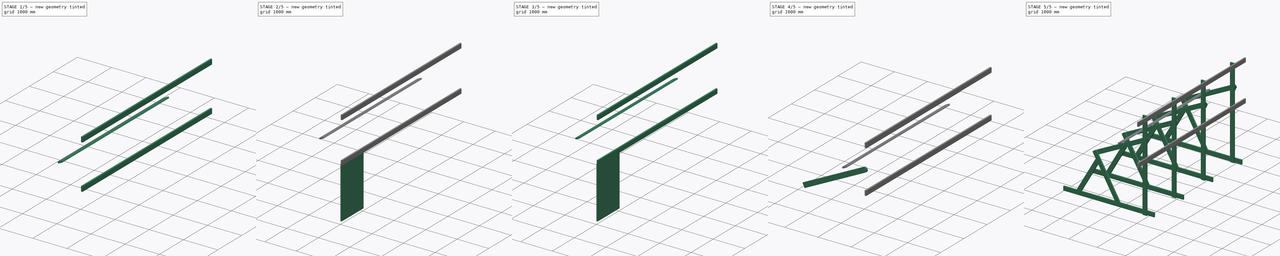
[diagram: build sequence overview — one tinted view per stage of 5, left to right]
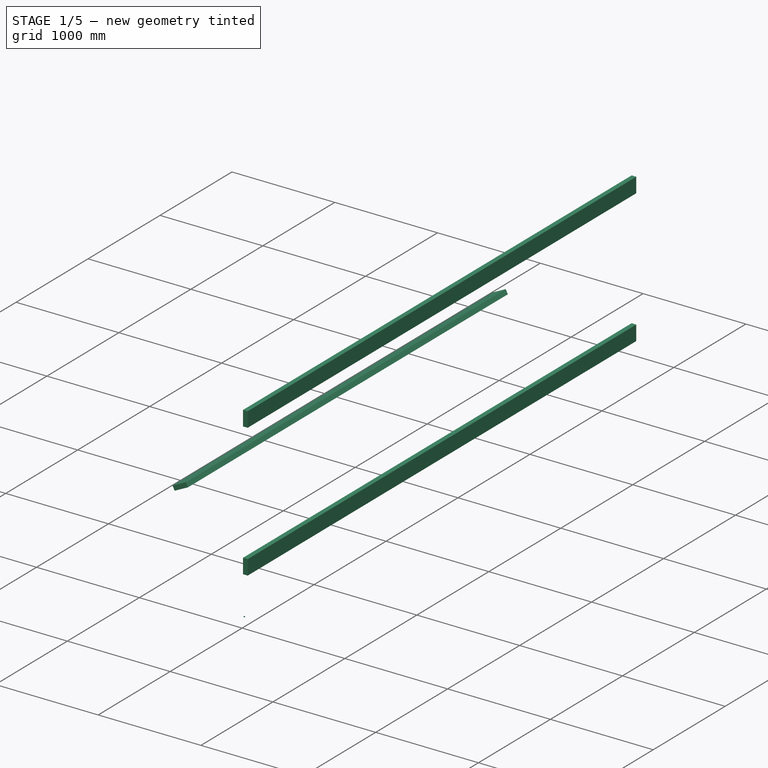
[diagram: stage 1 of 5 — iso view after this stage's code; geometry added in this stage tinted green]
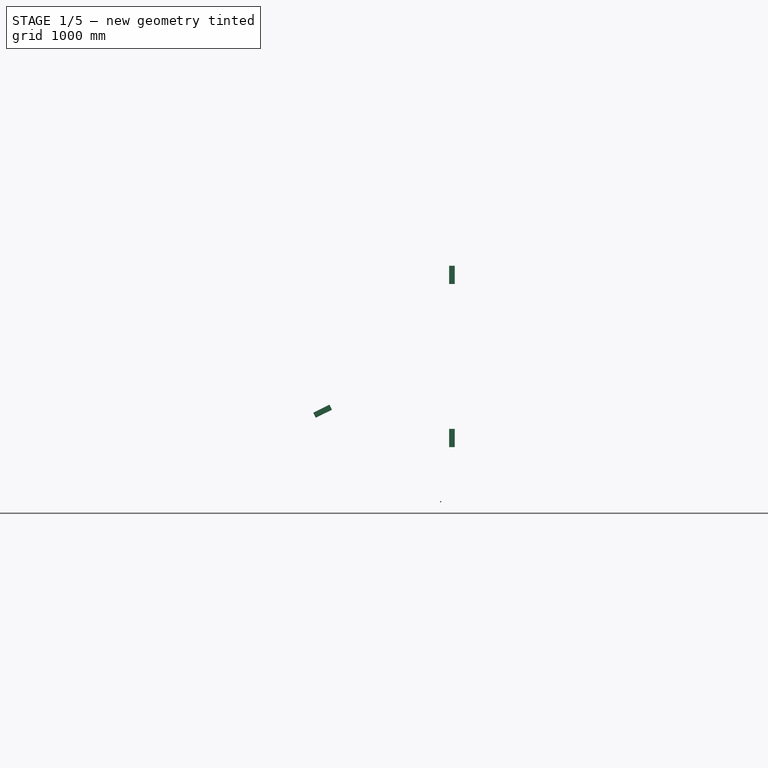
[diagram: stage 1 of 5 — front view after this stage's code; geometry added in this stage tinted green]
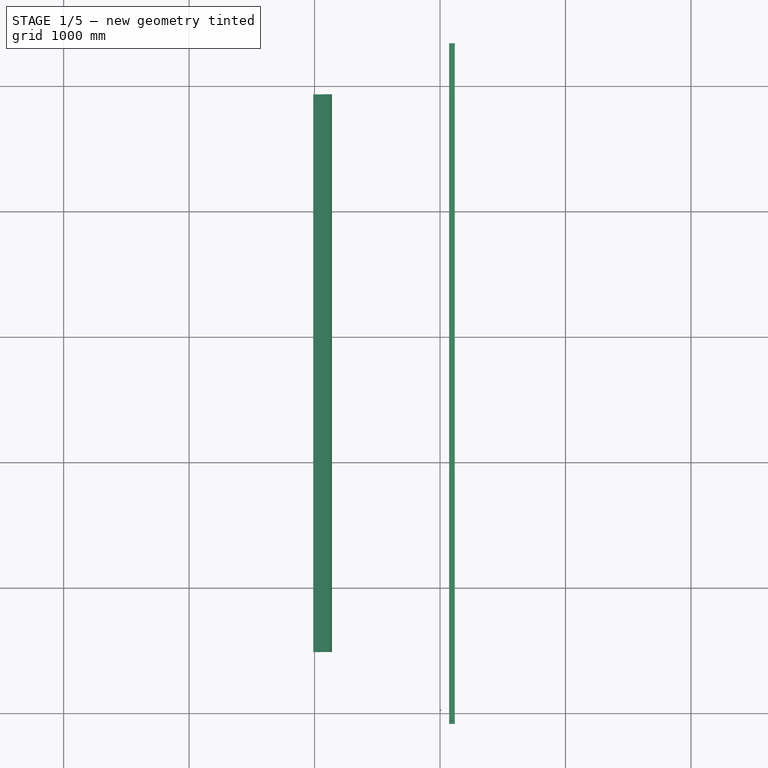
[diagram: stage 1 of 5 — top view after this stage's code; geometry added in this stage tinted green]
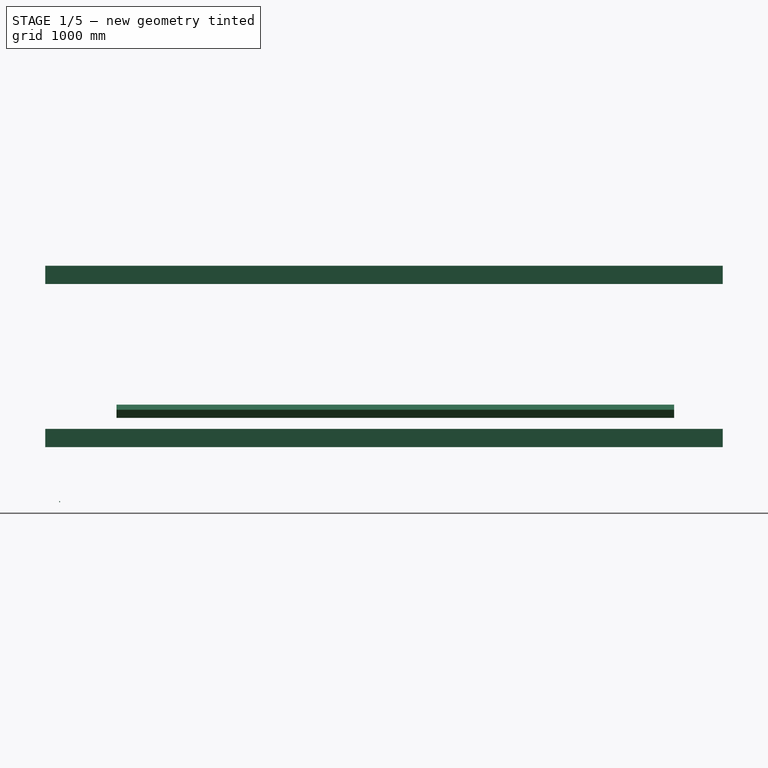
[diagram: stage 1 of 5 — right view after this stage's code; geometry added in this stage tinted green]
FCSTD DOCUMENT  (FreeCAD 0.16R)
Label: solar_mount4
License: All rights reserved
LicenseURL: http://en.wikipedia.org/wiki/All_rights_reserved
objects: Sketcher::SketchObject×8, PartDesign::Pad×7, Part::Cut×4, Part::Cylinder×4, Part::FeaturePython×4, Part::Fuse×2, Part::Compound×2, Part::Box×2, App::DocumentObjectGroup×1
note: 40 computed .brp shape members not serialized (recipe doc carries the construction recipe); baked Part::Feature solids carry a one-line shape summary decoded from their .brp

FEATURE [Part::Cylinder] Cylinder001
  Angle = 360
  Height = 10
  Placement = pos=(0,25,1220) rot=(0,1,0;1.5708rad)
  Radius = 4.5
FEATURE [Part::Box] Box  label="Cube"
  Height = 145
  Length = 45
  Width = 5400
FEATURE [Part::FeaturePython] Array002  # Draft array (typed FeaturePython)
  Angle = 360
  ArrayType = 0
  Axis = (0,0,1)
  Base = -> Box
  Center = (0,0,0)
  Fuse = false
  IntervalAxis = (0,0,0)
  IntervalX = (1,0,0)
  IntervalY = (0,1,0)
  IntervalZ = (0,0,1300)
  NumberPolar = 1
  NumberX = 1
  NumberY = 1
  NumberZ = 2
  Placement = pos=(72.5,-90,1655) rot=(0,0,1;0rad)
FEATURE [Part::Box] Box001  label="Cube001"
  Height = 145
  Length = 45
  Placement = pos=(-2003.12,432.5,525.426) rot=(0,1,0;0.523599rad)
  Width = 4445
FEATURE [Part::FeaturePython] Clone  label="Clone of Cube001"  # Draft clone (typed FeaturePython)
  Objects = -> [Box001]
  Placement = pos=(-1010.78,477.5,1928.44) rot=(0,1,0;1.10921rad)
  Scale = (1,1,1)
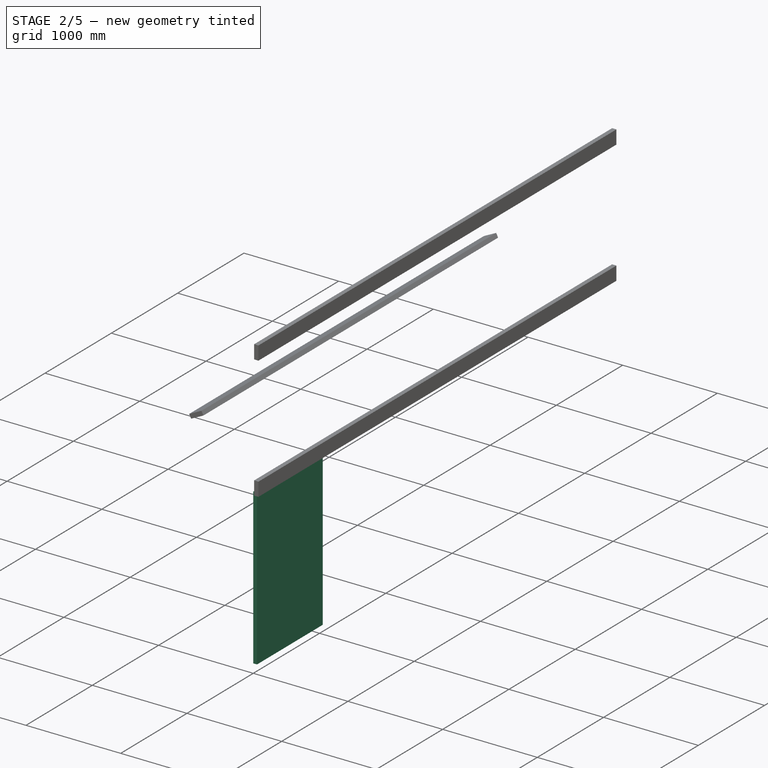
[diagram: stage 2 of 5 — iso view after this stage's code; geometry added in this stage tinted green]
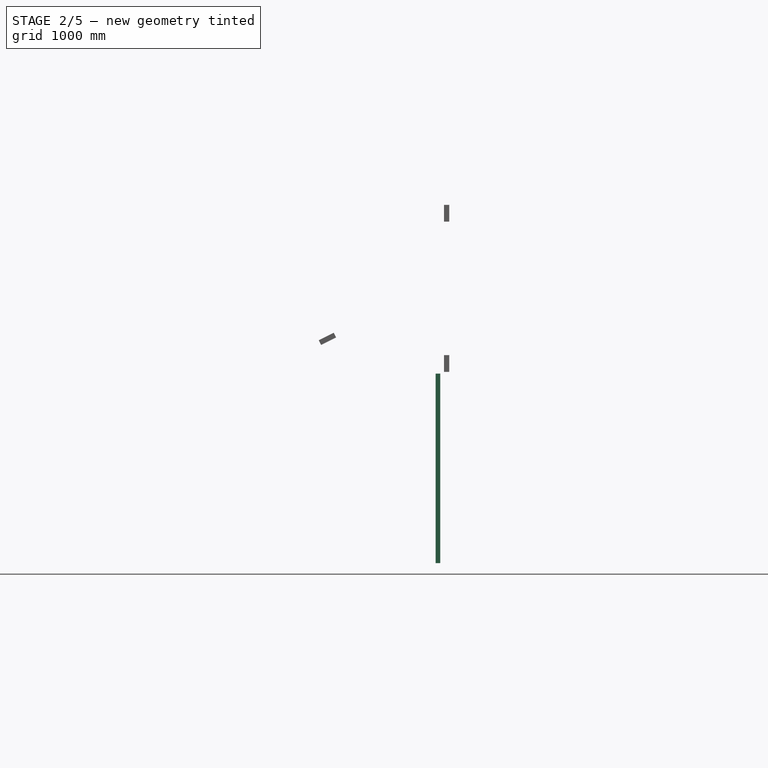
[diagram: stage 2 of 5 — front view after this stage's code; geometry added in this stage tinted green]
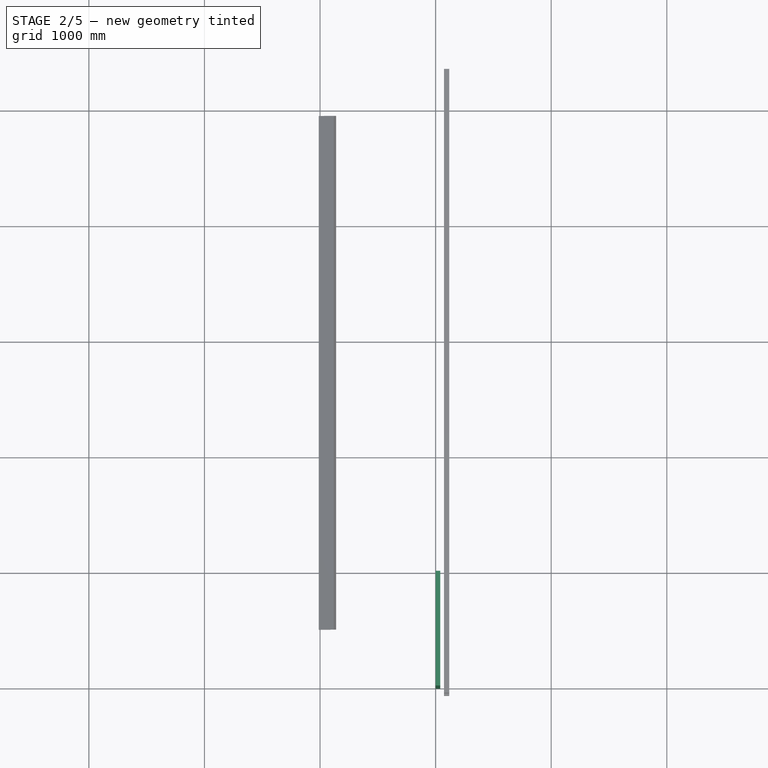
[diagram: stage 2 of 5 — top view after this stage's code; geometry added in this stage tinted green]
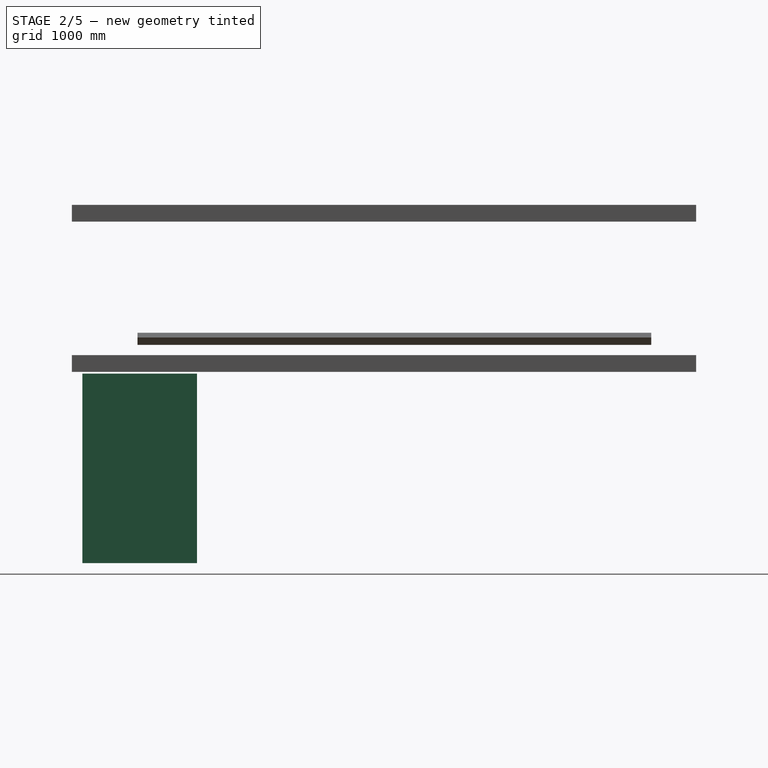
[diagram: stage 2 of 5 — right view after this stage's code; geometry added in this stage tinted green]
FEATURE [Sketcher::SketchObject] Sketch
  Placement = pos=(0,0,0) rot=(0.57735,0.57735,0.57735;2.0944rad)
  sketch-geometry (4):
    g0: LineSegment StartX=0 StartY=0 StartZ=0 EndX=992 EndY=0 EndZ=0
    g1: LineSegment StartX=992 StartY=0 StartZ=0 EndX=992 EndY=1640 EndZ=0
    g2: LineSegment StartX=992 StartY=1640 StartZ=0 EndX=0 EndY=1640 EndZ=0
    g3: LineSegment StartX=0 StartY=1640 StartZ=0 EndX=0 EndY=0 EndZ=0
  constraints (11):
    c: Coincident(g0,g1)
    c: Coincident(g1,g2)
    c: Coincident(g2,g3)
    c: Coincident(g3,g0)
    c: Horizontal(g0)
    c: Horizontal(g2)
    c: Vertical(g1)
    c: Vertical(g3)
    c: Coincident(g0,g-1)
    c: DistanceX(g0,g0) = 992
    c: DistanceY(g3,g3) = 1640
FEATURE [PartDesign::Pad] Pad  label="Bas"
  Length = 40
  Length2 = 100
  Placement = pos=(0,0,0) rot=(0.57735,0.57735,0.57735;2.0944rad)
  Sketch = -> Sketch
  Type = 0
FEATURE [Sketcher::SketchObject] Sketch001
  Placement = pos=(0,0,0) rot=(0.57735,0.57735,0.57735;2.0944rad)
  sketch-geometry (4):
    g0: LineSegment StartX=35 StartY=35 StartZ=0 EndX=957 EndY=35 EndZ=0
    g1: LineSegment StartX=957 StartY=35 StartZ=0 EndX=957 EndY=1605 EndZ=0
    g2: LineSegment StartX=957 StartY=1605 StartZ=0 EndX=35 EndY=1605 EndZ=0
    g3: LineSegment StartX=35 StartY=1605 StartZ=0 EndX=35 EndY=35 EndZ=0
  constraints (12):
    c: Coincident(g0,g1)
    c: Coincident(g1,g2)
    c: Coincident(g2,g3)
    c: Coincident(g3,g0)
    c: Horizontal(g0)
    c: Horizontal(g2)
    c: Vertical(g1)
    c: Vertical(g3)
    c: DistanceX(g-2,g0) = 35
    c: DistanceY(g-1,g0) = 35
    c: DistanceX(g0,g0) = 922
    c: DistanceY(g1,g1) = 1570
FEATURE [PartDesign::Pad] Pad001  label="Gröpner"
  Length = 20
  Length2 = 100
  Placement = pos=(0,0,0) rot=(0.57735,0.57735,0.57735;2.0944rad)
  Sketch = -> Sketch001
  Type = 0
FEATURE [Part::Cut] Cut
  Base = -> Pad
  Tool = -> Pad001
FEATURE [Part::Cylinder] Cylinder
  Angle = 360
  Height = 10
  Placement = pos=(0,25,420) rot=(0,1,0;1.5708rad)
  Radius = 4.5
FEATURE [Part::Fuse] Fusion
  Base = -> Cylinder
  Tool = -> Cylinder001
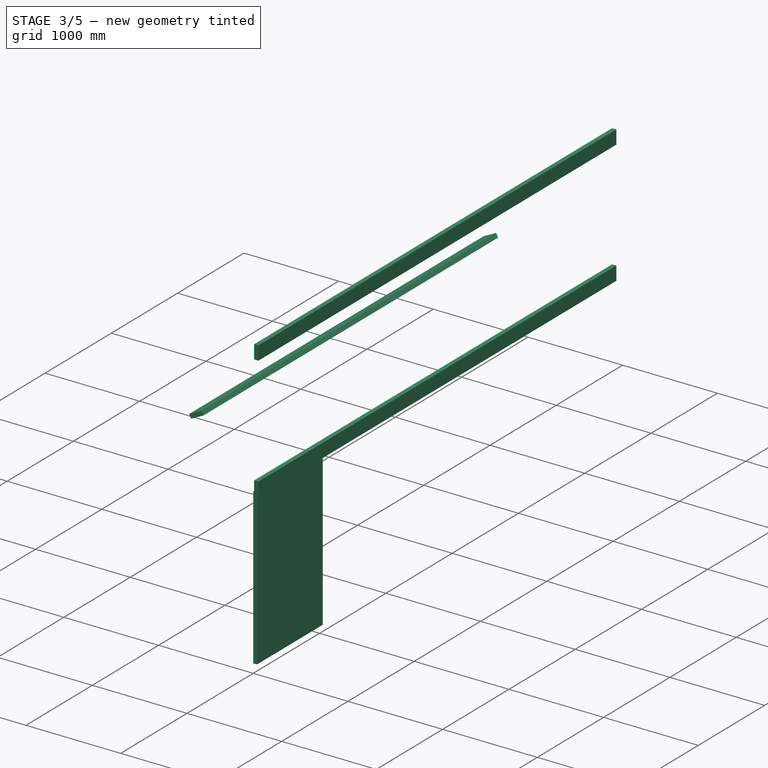
[diagram: stage 3 of 5 — iso view after this stage's code; geometry added in this stage tinted green]
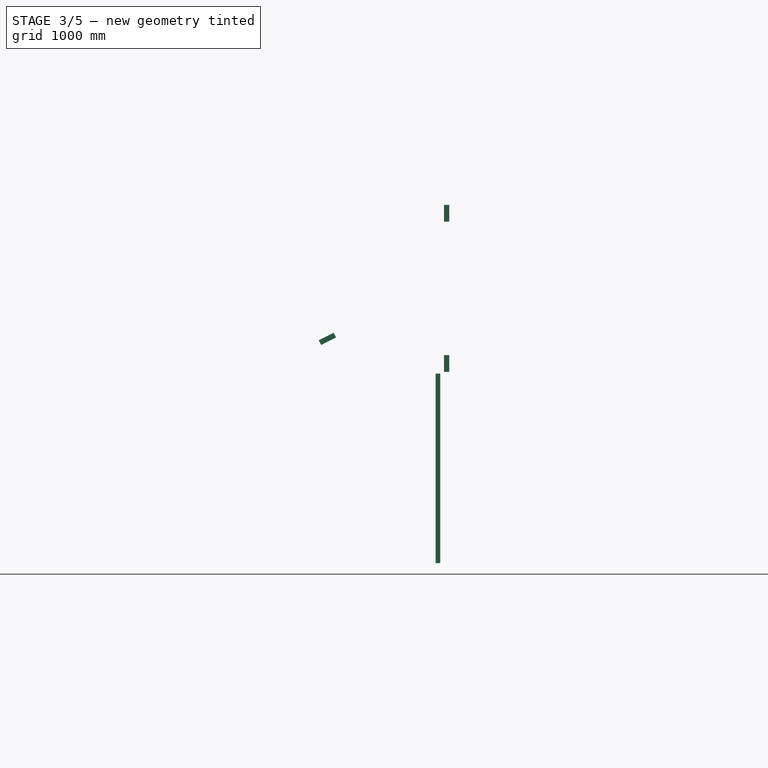
[diagram: stage 3 of 5 — front view after this stage's code; geometry added in this stage tinted green]
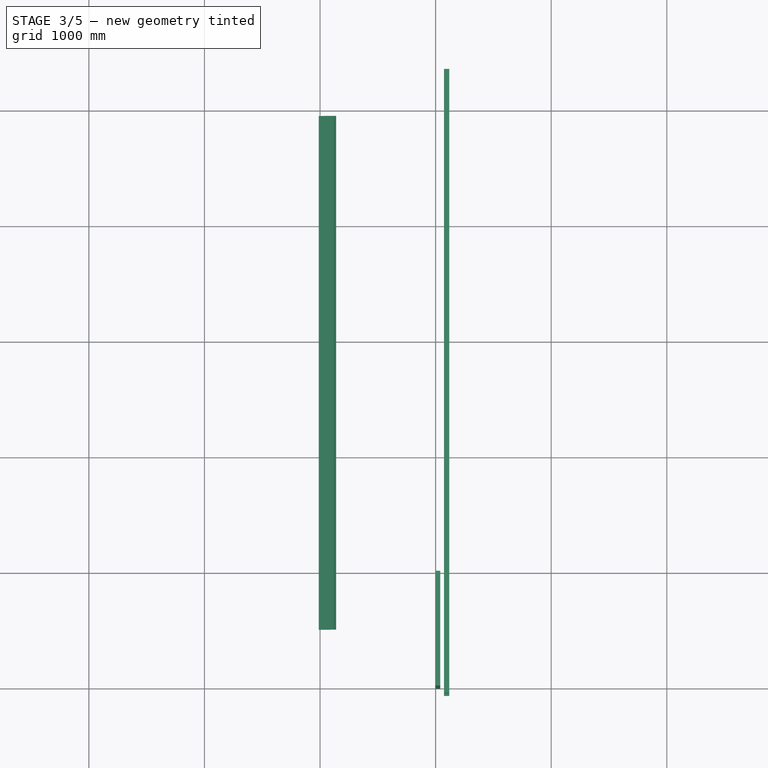
[diagram: stage 3 of 5 — top view after this stage's code; geometry added in this stage tinted green]
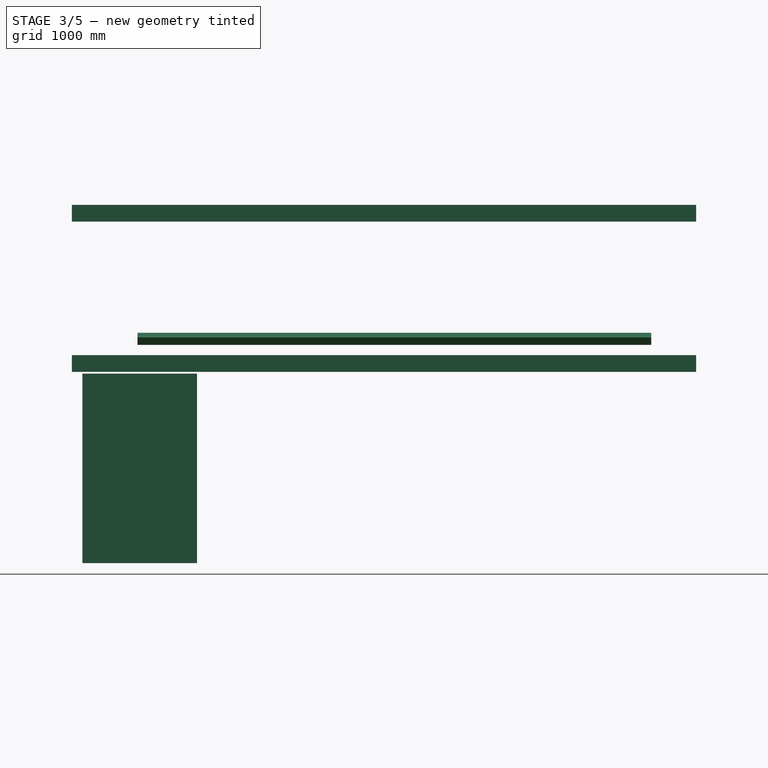
[diagram: stage 3 of 5 — right view after this stage's code; geometry added in this stage tinted green]
FEATURE [Sketcher::SketchObject] Sketch002
  Placement = pos=(3,0,0) rot=(0.57735,0.57735,0.57735;2.0944rad)
  sketch-geometry (4):
    g0: LineSegment StartX=11 StartY=11 StartZ=0 EndX=981 EndY=11 EndZ=0
    g1: LineSegment StartX=981 StartY=11 StartZ=0 EndX=981 EndY=1629 EndZ=0
    g2: LineSegment StartX=981 StartY=1629 StartZ=0 EndX=11 EndY=1629 EndZ=0
    g3: LineSegment StartX=11 StartY=1629 StartZ=0 EndX=11 EndY=11 EndZ=0
  constraints (12):
    c: Coincident(g0,g1)
    c: Coincident(g1,g2)
    c: Coincident(g2,g3)
    c: Coincident(g3,g0)
    c: Horizontal(g0)
    c: Horizontal(g2)
    c: Vertical(g1)
    c: Vertical(g3)
    c: DistanceX(g-2,g0) = 11
    c: DistanceY(g-1,g0) = 11
    c: DistanceX(g0,g0) = 970
    c: DistanceY(g1,g1) = 1618
FEATURE [PartDesign::Pad] Pad002  label="Gröpkant"
  Length = 27
  Length2 = 100
  Placement = pos=(3,0,0) rot=(0.57735,0.57735,0.57735;2.0944rad)
  Sketch = -> Sketch002
  Type = 0
FEATURE [Part::Cut] Cut001
  Base = -> Cut
  Tool = -> Pad002
FEATURE [Part::Cylinder] Cylinder002
  Angle = 360
  Height = 10
  Placement = pos=(0,25,420) rot=(0,1,0;1.5708rad)
  Radius = 4.5
FEATURE [Part::Cylinder] Cylinder003
  Angle = 360
  Height = 10
  Placement = pos=(0,25,1220) rot=(0,1,0;1.5708rad)
  Radius = 4.5
FEATURE [Part::Cut] Cut002
  Base = -> Cut001
  Tool = -> Fusion
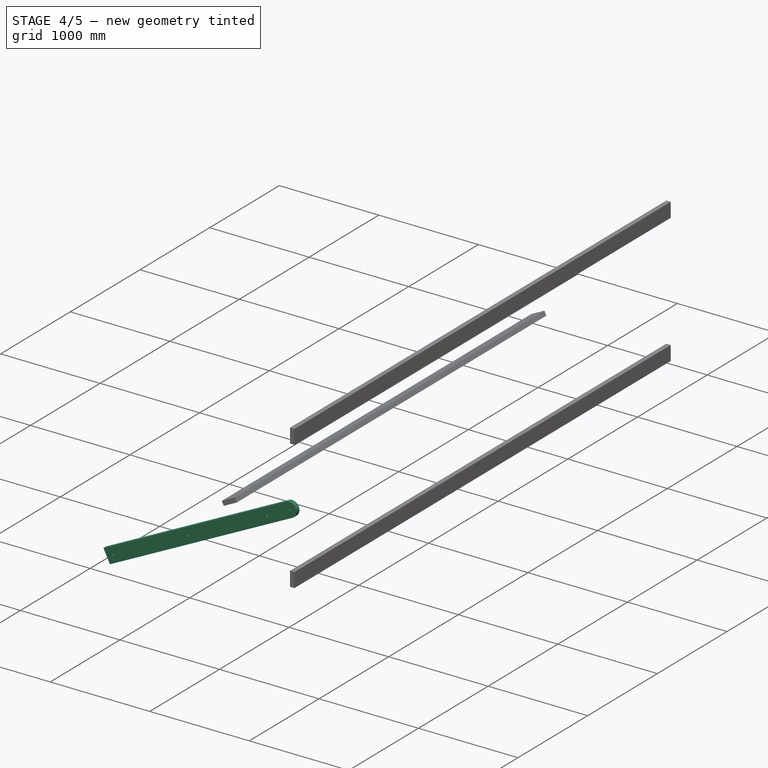
[diagram: stage 4 of 5 — iso view after this stage's code; geometry added in this stage tinted green]
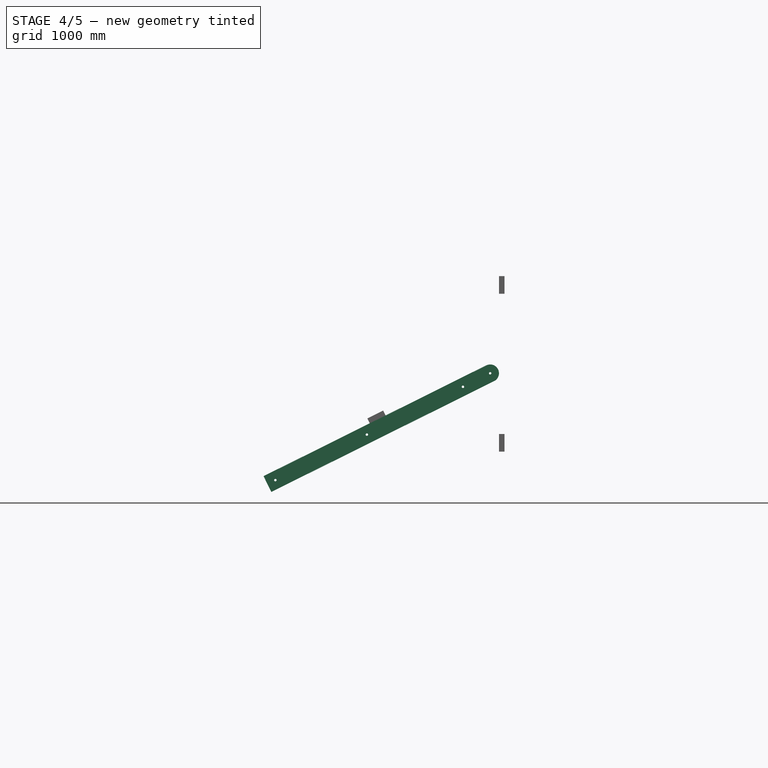
[diagram: stage 4 of 5 — front view after this stage's code; geometry added in this stage tinted green]
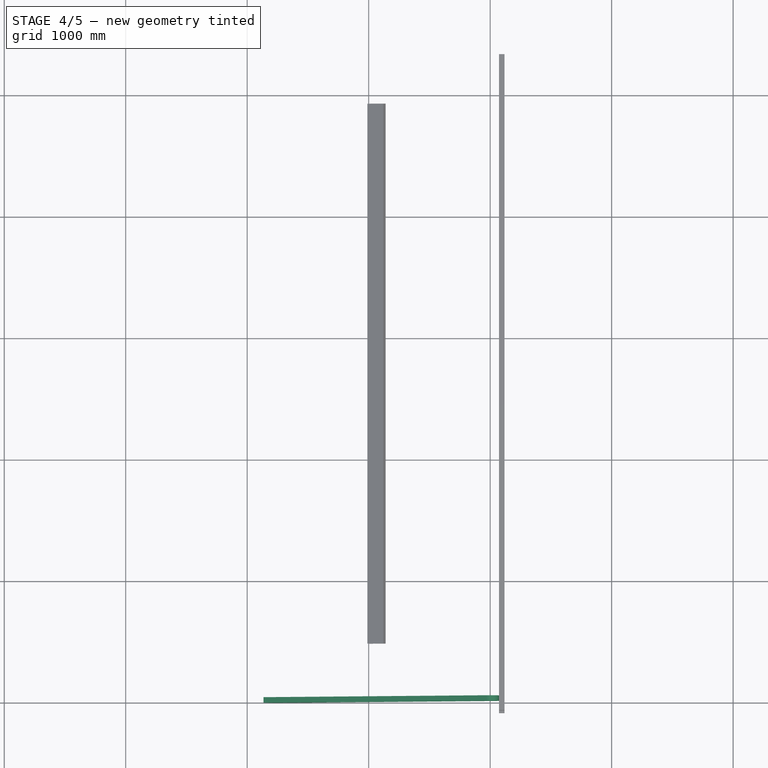
[diagram: stage 4 of 5 — top view after this stage's code; geometry added in this stage tinted green]
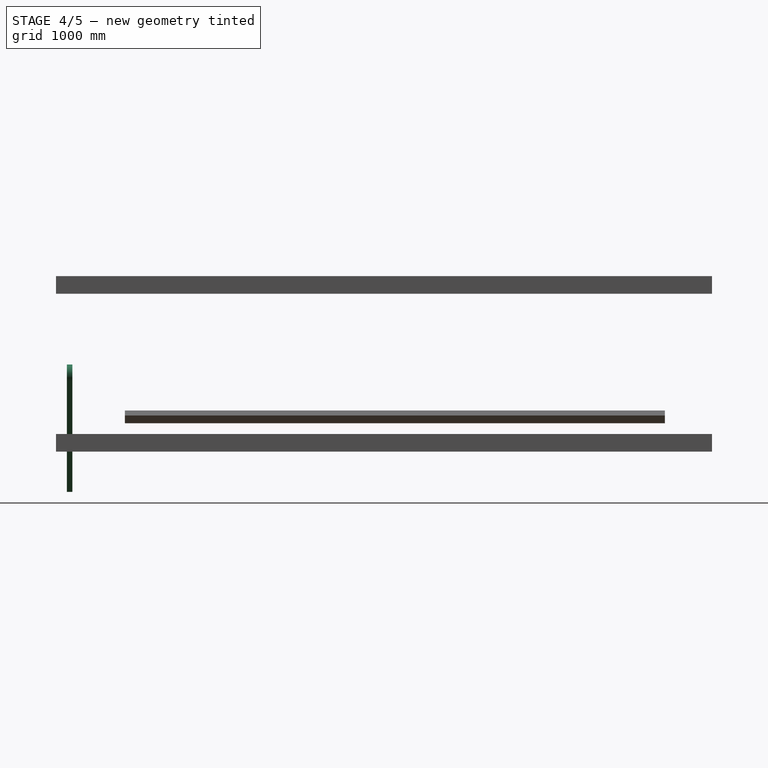
[diagram: stage 4 of 5 — right view after this stage's code; geometry added in this stage tinted green]
FEATURE [Part::Fuse] Fusion001
  Base = -> Cylinder002
  Placement = pos=(0,942,0) rot=(0,0,1;0rad)
  Tool = -> Cylinder003
FEATURE [Part::Cut] Cut003  label="Solar panel w holes"
  Base = -> Cut002
  Placement = pos=(-1.507e-09,0,1305.59) rot=(0,0,1;0rad)
  Tool = -> Fusion001
FEATURE [Part::FeaturePython] Array  # Draft array (typed FeaturePython)
  Angle = 360
  ArrayType = 0
  Axis = (0,0,1)
  Base = -> Cut003
  Center = (0,0,0)
  Fuse = false
  IntervalAxis = (0,0,0)
  IntervalX = (1,0,0)
  IntervalY = (0,1100,0)
  IntervalZ = (0,0,0)
  NumberPolar = 1
  NumberX = 1
  NumberY = 5
  NumberZ = 1
  Placement = pos=(117.5,-90,251.91) rot=(0,0,1;0rad)
FEATURE [Sketcher::SketchObject] Sketch008
  Placement = pos=(0,0,0) rot=(-1,0,0;4.71239rad)
  sketch-geometry (17):
    g0: LineSegment [constr] StartX=0 StartY=0 StartZ=0 EndX=0 EndY=2300 EndZ=0
    g1: LineSegment [constr] StartX=0 StartY=0 StartZ=0 EndX=-1626.35 EndY=1626.35 EndZ=0
    g2: LineSegment [constr] StartX=0 StartY=0 StartZ=0 EndX=-880.172 EndY=2124.92 EndZ=0
    g3: LineSegment [constr] StartX=-892.15 StartY=0 StartZ=0 EndX=-1733.69 EndY=1457.6 EndZ=0
    g4: LineSegment [constr] StartX=-1733.69 StartY=1457.6 StartZ=0 EndX=-2575.24 EndY=0 EndZ=0
    g5: LineSegment [constr] StartX=-2575.24 StartY=0 StartZ=0 EndX=-892.15 EndY=0 EndZ=0
    g6: LineSegment [constr] StartX=-892.15 StartY=0 StartZ=0 EndX=0 EndY=0 EndZ=0
    g7: LineSegment [constr] StartX=0 StartY=0 StartZ=0 EndX=1412.38 EndY=0 EndZ=0
    g8: LineSegment [constr] StartX=-2575.24 StartY=0 StartZ=0 EndX=-3987.62 EndY=0 EndZ=0
    g9: LineSegment [constr] StartX=-1626.35 StartY=1626.35 StartZ=0 EndX=-1733.69 EndY=1457.6 EndZ=0
    g10: LineSegment [constr] StartX=-1733.69 StartY=1457.6 StartZ=0 EndX=-2660.92 EndY=0 EndZ=0
    g11: LineSegment [constr] StartX=-880.172 StartY=2124.92 StartZ=0 EndX=-1733.69 EndY=1457.6 EndZ=0
    g12: LineSegment [constr] StartX=-1733.69 StartY=1457.6 StartZ=0 EndX=-2398.66 EndY=937.688 EndZ=0
    g13: LineSegment [constr] StartX=-1733.69 StartY=1457.6 StartZ=0 EndX=0 EndY=2300 EndZ=0
    g14: LineSegment [constr] StartX=-2660.92 StartY=0 StartZ=0 EndX=-1626.35 EndY=1626.35 EndZ=0
    g15: LineSegment [constr] StartX=-2398.66 StartY=937.688 StartZ=0 EndX=-880.172 EndY=2124.92 EndZ=0
    g16: GeomPoint [constr] X=-2660.92 Y=0 Z=0
  constraints (43):
    c: Coincident(g-1,g0)
    c: Vertical(g0)
    c: Coincident(g1,g-1)
    c: Coincident(g2,g-1)
    c: PointOnObject(g3,g-1)
    c: Coincident(g3,g4)
    c: Coincident(g4,g5)
    c: Coincident(g5,g3)
    c: Horizontal(g5)
    c: Coincident(g3,g6)
    c: Coincident(g6,g-1)
    c: Coincident(g6,g7)
    c: Horizontal(g7)
    c: Coincident(g4,g8)
    c: Horizontal(g8)
    c: Equal(g1,g2)
    c: Equal(g2,g0)
    c: Coincident(g9,g1)
    c: Coincident(g9,g3)
    c: Angle(g0,g2) = 0.392699
    c: Angle(g0,g1) = 0.785398
    c: Angle(g3,g5) = 1.0472
    c: Angle(g5,g4) = 1.0472
    c: DistanceY(g0,g0) = 2300
    c: DistanceX(g8,g7) = 5400
    c: Equal(g8,g7)
    c: Coincident(g10,g3)
    c: Distance(g9) = 200
    c: Coincident(g11,g2)
    c: Coincident(g11,g3)
    c: Coincident(g12,g3)
    c: Coincident(g13,g3)
    c: Coincident(g13,g0)
    c: Coincident(g14,g10)
    c: Coincident(g14,g1)
    c: Equal(g14,g13)
    c: Coincident(g15,g12)
    c: Coincident(g15,g2)
    c: Equal(g13,g15)
    c: Parallel(g10,g14)
    c: Parallel(g12,g15)
    c: Coincident(g10,g16)
    c: PointOnObject(g10,g8)
FEATURE [PartDesign::Pad] Pad007
  Length = 45
  Length2 = 100
  Placement = pos=(0,45,0) rot=(1,0,0;1.5708rad)
  Sketch = -> Sketch007
  Type = 0
FEATURE [Part::Compound] Compound001
  Links = -> [Group,Array002]
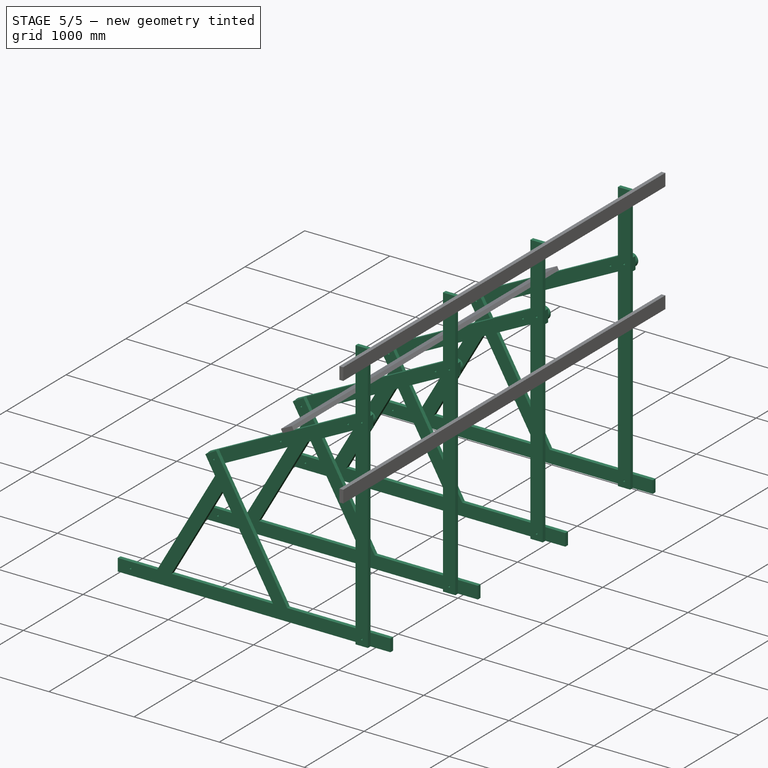
[diagram: stage 5 of 5 — iso view after this stage's code; geometry added in this stage tinted green]
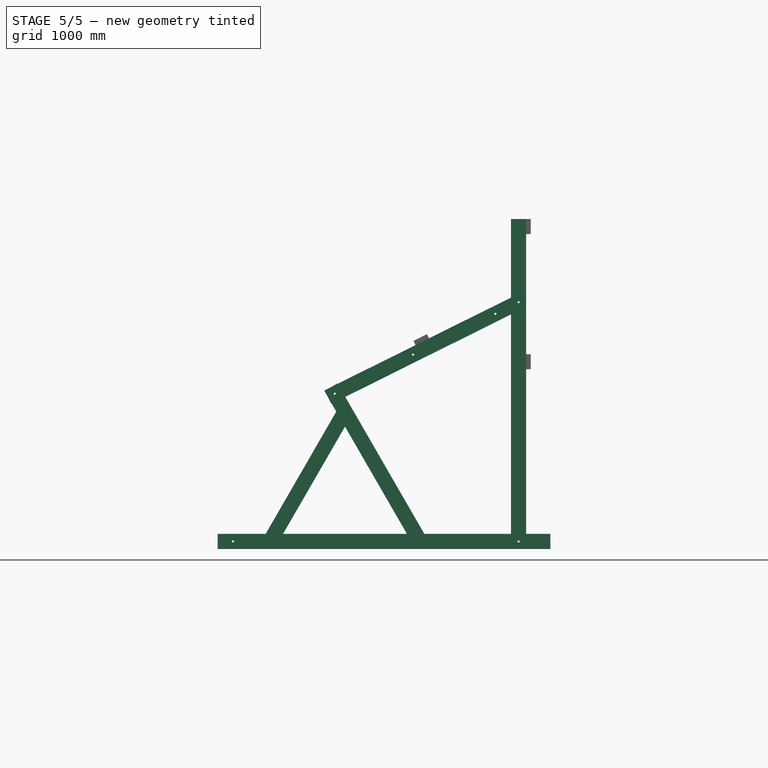
[diagram: stage 5 of 5 — front view after this stage's code; geometry added in this stage tinted green]
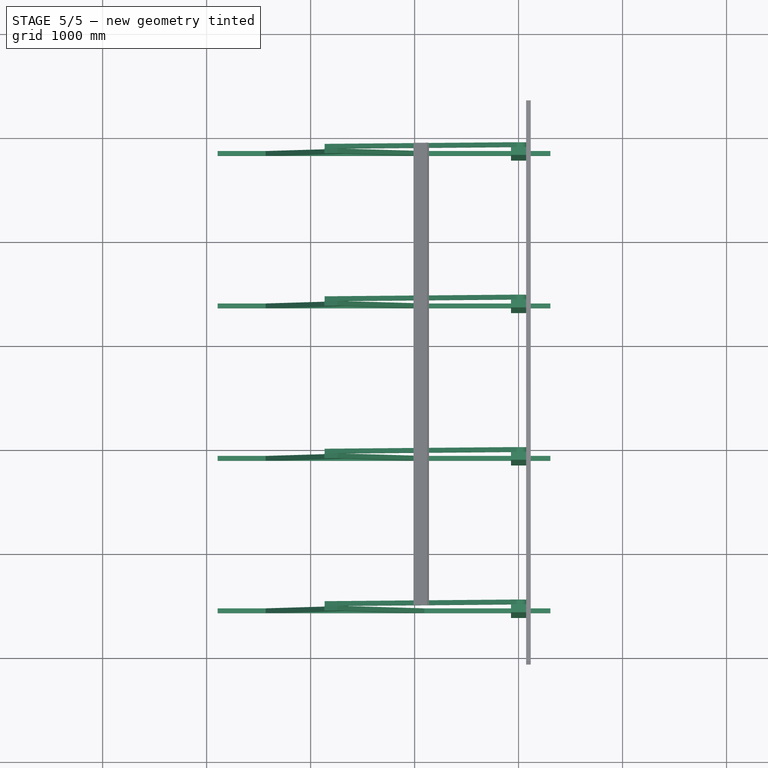
[diagram: stage 5 of 5 — top view after this stage's code; geometry added in this stage tinted green]
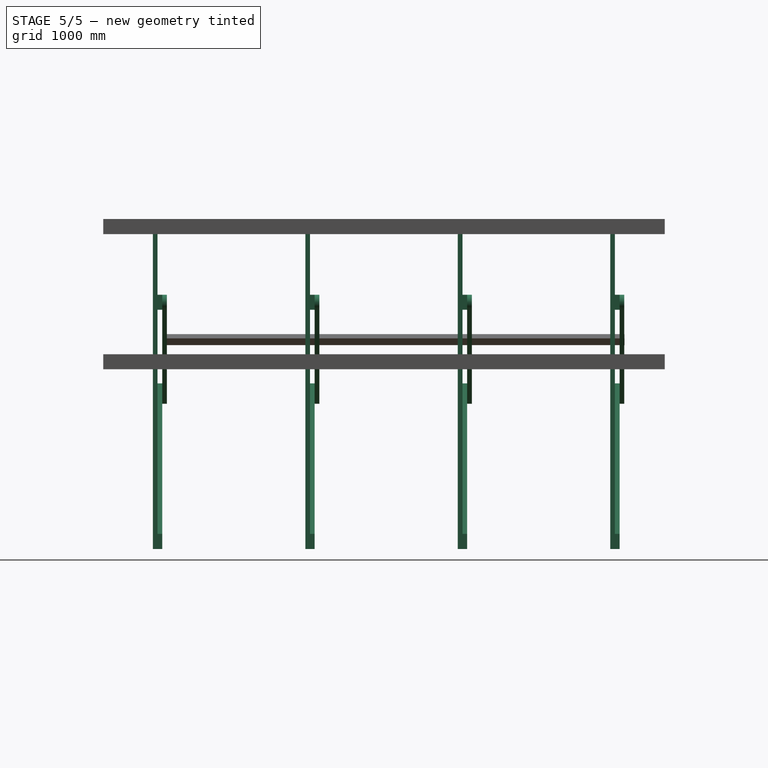
[diagram: stage 5 of 5 — right view after this stage's code; geometry added in this stage tinted green]
FEATURE [App::DocumentObjectGroup] Group  label="Panels"
  Group = -> [Cut003,Array]
FEATURE [Sketcher::SketchObject] Sketch004
  Placement = pos=(0,0,0) rot=(1,0,0;1.5708rad)
  sketch-geometry (40):
    g0: LineSegment [constr] StartX=0 StartY=0 StartZ=0 EndX=0 EndY=2300 EndZ=0
    g1: LineSegment [constr] StartX=0 StartY=0 StartZ=0 EndX=-1626.35 EndY=1626.35 EndZ=0
    g2: LineSegment [constr] StartX=0 StartY=0 StartZ=0 EndX=-880.172 EndY=2124.92 EndZ=0
    g3: LineSegment [constr] StartX=-948.058 StartY=0 StartZ=0 EndX=-1768.16 EndY=1420.46 EndZ=0
    g4: LineSegment [constr] StartX=-1768.16 StartY=1420.46 StartZ=0 EndX=-2588.27 EndY=0 EndZ=0
    g5: LineSegment [constr] StartX=-2588.27 StartY=0 StartZ=0 EndX=-948.058 EndY=0 EndZ=0
    g6: LineSegment [constr] StartX=-948.058 StartY=0 StartZ=0 EndX=0 EndY=0 EndZ=0
    g7: LineSegment [constr] StartX=0 StartY=0 StartZ=0 EndX=305.867 EndY=0 EndZ=0
    g8: LineSegment [constr] StartX=-2588.27 StartY=0 StartZ=0 EndX=-2894.13 EndY=0 EndZ=0
    g9: LineSegment [constr] StartX=-1626.35 StartY=1626.35 StartZ=0 EndX=-1768.16 EndY=1420.46 EndZ=0
    g10: LineSegment [constr] StartX=-1768.16 StartY=1420.46 StartZ=0 EndX=-2746.61 EndY=0 EndZ=0
    g11: LineSegment [constr] StartX=-880.172 StartY=2124.92 StartZ=0 EndX=-1768.16 EndY=1420.46 EndZ=0
    g12: LineSegment [constr] StartX=-1768.16 StartY=1420.46 StartZ=0 EndX=-2427.29 EndY=897.563 EndZ=0
    g13: LineSegment [constr] StartX=-1768.16 StartY=1420.46 StartZ=0 EndX=0 EndY=2300 EndZ=0
    g14: LineSegment [constr] StartX=-2746.61 StartY=0 StartZ=0 EndX=-1626.35 EndY=1626.35 EndZ=0
    g15: LineSegment [constr] StartX=-2427.29 StartY=897.563 StartZ=0 EndX=-880.172 EndY=2124.92 EndZ=0
    g16: GeomPoint [constr] X=-2746.61 Y=0 Z=0
    g17: LineSegment StartX=-2894.13 StartY=0 StartZ=0 EndX=-2894.13 EndY=72.5 EndZ=0
    g18: LineSegment StartX=-2894.13 StartY=72.5 StartZ=0 EndX=-2432.05 EndY=72.5 EndZ=0
    g19: LineSegment StartX=-2432.05 StartY=72.5 StartZ=0 EndX=-1752.84 EndY=1248.93 EndZ=0
    g20: LineSegment StartX=-1752.84 StartY=1248.93 StartZ=0 EndX=-1867.2 EndY=1447 EndZ=0
    g21: LineSegment StartX=-1867.2 StartY=1447 StartZ=0 EndX=-1804.41 EndY=1483.25 EndZ=0
    g22: LineSegment StartX=-1804.41 StartY=1483.25 StartZ=0 EndX=-1741.63 EndY=1519.5 EndZ=0
    g23: LineSegment StartX=-1741.63 StartY=1519.5 StartZ=0 EndX=-906.2 EndY=72.5 EndZ=0
    g24: LineSegment StartX=-906.2 StartY=72.5 StartZ=0 EndX=305.867 EndY=72.5 EndZ=0
    g25: LineSegment StartX=305.867 StartY=72.5 StartZ=0 EndX=305.867 EndY=0 EndZ=0
    g26: LineSegment StartX=305.867 StartY=0 StartZ=0 EndX=305.867 EndY=-72.5 EndZ=0
    g27: LineSegment StartX=305.867 StartY=-72.5 StartZ=0 EndX=-2894.13 EndY=-72.5 EndZ=0
    g28: LineSegment StartX=-2894.13 StartY=-72.5 StartZ=0 EndX=-2894.13 EndY=0 EndZ=0
    g29: LineSegment StartX=-2264.62 StartY=72.5 StartZ=0 EndX=-1669.13 EndY=1103.93 EndZ=0
    g30: LineSegment StartX=-1669.13 StartY=1103.93 StartZ=0 EndX=-1073.63 EndY=72.5 EndZ=0
    g31: LineSegment StartX=-1073.63 StartY=72.5 StartZ=0 EndX=-2264.62 EndY=72.5 EndZ=0
    g32: LineSegment [constr] StartX=-1804.41 StartY=1483.25 StartZ=0 EndX=-1768.16 EndY=1420.46 EndZ=0
    g33: LineSegment [constr] StartX=-1752.84 StartY=1248.93 StartZ=0 EndX=-1669.13 EndY=1393.93 EndZ=0
    g34: Circle CenterX=-2746.61 CenterY=0 CenterZ=0 NormalX=0 NormalY=0 NormalZ=1 Radius=10
    g35: Circle CenterX=-1768.16 CenterY=1420.46 CenterZ=0 NormalX=0 NormalY=0 NormalZ=1 Radius=10
    g36: Circle CenterX=0 CenterY=0 CenterZ=0 NormalX=0 NormalY=0 NormalZ=1 Radius=10
    g37: LineSegment [constr] StartX=-2432.05 StartY=72.5 StartZ=0 EndX=-2264.62 EndY=72.5 EndZ=0
    g38: LineSegment [constr] StartX=-1073.63 StartY=72.5 StartZ=0 EndX=-906.2 EndY=72.5 EndZ=0
    g39: LineSegment [constr] StartX=-1752.84 StartY=1248.93 StartZ=0 EndX=-1669.13 EndY=1103.93 EndZ=0
  constraints (103):
    c: Coincident(g-1,g0)
    c: Vertical(g0)
    c: Coincident(g1,g-1)
    c: Coincident(g2,g-1)
    c: PointOnObject(g3,g-1)
    c: Coincident(g3,g4)
    c: Coincident(g4,g5)
    c: Coincident(g5,g3)
    c: Horizontal(g5)
    c: Coincident(g3,g6)
    c: Coincident(g6,g-1)
    c: Coincident(g6,g7)
    c: Horizontal(g7)
    c: Coincident(g4,g8)
    c: Horizontal(g8)
    c: Equal(g1,g2)
    c: Equal(g2,g0)
    c: Coincident(g9,g1)
    c: Coincident(g9,g3)
    c: Angle(g0,g2) = 0.392699
    c: Angle(g0,g1) = 0.785398
    c: Angle(g3,g5) = 1.0472
    c: Angle(g5,g4) = 1.0472
    c: DistanceY(g0,g0) = 2300
    c: DistanceX(g8,g7) = 3200
    c: Equal(g8,g7)
    c: Coincident(g10,g3)
    c: Distance(g9) = 250
    c: Coincident(g11,g2)
    c: Coincident(g11,g3)
    c: Coincident(g12,g3)
    c: Coincident(g13,g3)
    c: Coincident(g13,g0)
    c: Coincident(g14,g10)
    c: Coincident(g14,g1)
    c: Equal(g14,g13)
    c: Coincident(g15,g12)
    c: Coincident(g15,g2)
    c: Equal(g13,g15)
    c: Parallel(g10,g14)
    c: Parallel(g12,g15)
    c: Coincident(g10,g16)
    c: PointOnObject(g10,g8)
    c: Coincident(g8,g17)
    c: Vertical(g17)
    c: Coincident(g17,g18)
    c: Horizontal(g18)
    c: Coincident(g18,g19)
    c: Coincident(g19,g20)
    c: Coincident(g20,g21)
    c: Coincident(g21,g22)
    c: Coincident(g22,g23)
    c: Coincident(g23,g24)
    c: Horizontal(g24)
    c: Coincident(g24,g25)
    c: Coincident(g25,g7)
    c: Coincident(g25,g26)
    c: Vertical(g26)
    c: Coincident(g26,g27)
    c: Horizontal(g27)
    c: Coincident(g27,g28)
    c: Coincident(g28,g17)
    c: Coincident(g29,g30)
    c: Coincident(g30,g31)
    c: Coincident(g31,g29)
    c: Horizontal(g31)
    c: Coincident(g32,g3)
    c: Coincident(g33,g19)
    c: PointOnObject(g33,g23)
    c: Coincident(g34,g10)
    c: Coincident(g35,g3)
    c: Coincident(g36,g-1)
    c: Equal(g34,g36)
    c: Equal(g36,g35)
    c: Radius(g36) = 10
    c: Coincident(g37,g18)
    c: Coincident(g37,g29)
    c: Coincident(g38,g30)
    c: Coincident(g38,g23)
    c: Horizontal(g38)
    c: Horizontal(g37)
    c: Vertical(g28)
    c: Equal(g17,g28)
    c: Vertical(g25)
    c: DistanceY(g26,g24) = 145
    c: Parallel(g33,g19)
    c: Parallel(g19,g4)
    c: Parallel(g4,g29)
    c: Coincident(g39,g19)
    c: Coincident(g39,g29)
    c: Parallel(g30,g39)
    c: Parallel(g39,g20)
    c: Parallel(g20,g23)
    c: Parallel(g23,g3)
    c: Coincident(g32,g21)
    c: Perpendicular(g22,g23)
    c: Perpendicular(g20,g21)
    c: Equal(g21,g22)
    c: Distance(g20,g22) = 145
    c: Distance(g33,g22) = 145
    c: Distance(g32) = 72.5
    c: Distance(g29,g19) = 145
    c: Parallel(g3,g32)
FEATURE [Sketcher::SketchObject] Sketch005
  Placement = pos=(0,0,0) rot=(1,0,0;1.5708rad)
  sketch-geometry (26):
    g0: LineSegment [constr] StartX=0 StartY=0 StartZ=0 EndX=0 EndY=2300 EndZ=0
    g1: LineSegment [constr] StartX=0 StartY=0 StartZ=0 EndX=-1626.35 EndY=1626.35 EndZ=0
    g2: LineSegment [constr] StartX=0 StartY=0 StartZ=0 EndX=-880.172 EndY=2124.92 EndZ=0
    g3: LineSegment [constr] StartX=-948.058 StartY=0 StartZ=0 EndX=-1768.16 EndY=1420.46 EndZ=0
    g4: LineSegment [constr] StartX=-1768.16 StartY=1420.46 StartZ=0 EndX=-2588.27 EndY=0 EndZ=0
    g5: LineSegment [constr] StartX=-2588.27 StartY=0 StartZ=0 EndX=-948.058 EndY=0 EndZ=0
    g6: LineSegment [constr] StartX=-948.058 StartY=0 StartZ=0 EndX=0 EndY=0 EndZ=0
    g7: LineSegment [constr] StartX=0 StartY=0 StartZ=0 EndX=1405.87 EndY=0 EndZ=0
    g8: LineSegment [constr] StartX=-2588.27 StartY=0 StartZ=0 EndX=-3994.13 EndY=0 EndZ=0
    g9: LineSegment [constr] StartX=-1626.35 StartY=1626.35 StartZ=0 EndX=-1768.16 EndY=1420.46 EndZ=0
    g10: LineSegment [constr] StartX=-1768.16 StartY=1420.46 StartZ=0 EndX=-2746.61 EndY=0 EndZ=0
    g11: LineSegment [constr] StartX=-880.172 StartY=2124.92 StartZ=0 EndX=-1768.16 EndY=1420.46 EndZ=0
    g12: LineSegment [constr] StartX=-1768.16 StartY=1420.46 StartZ=0 EndX=-2427.29 EndY=897.563 EndZ=0
    g13: LineSegment [constr] StartX=-1768.16 StartY=1420.46 StartZ=0 EndX=0 EndY=2300 EndZ=0
    g14: LineSegment [constr] StartX=-2746.61 StartY=0 StartZ=0 EndX=-1626.35 EndY=1626.35 EndZ=0
    g15: LineSegment [constr] StartX=-2427.29 StartY=897.563 StartZ=0 EndX=-880.172 EndY=2124.92 EndZ=0
    g16: GeomPoint [constr] X=-2746.61 Y=0 Z=0
    g17: LineSegment StartX=72.5 StartY=2227.5 StartZ=0 EndX=-72.5 EndY=2227.5 EndZ=0
    g18: LineSegment StartX=-72.5 StartY=2227.5 StartZ=0 EndX=-72.5 EndY=2372.5 EndZ=0
    g19: Circle CenterX=0 CenterY=2300 CenterZ=0 NormalX=0 NormalY=0 NormalZ=1 Radius=10
    g20: LineSegment [constr] StartX=0 StartY=2300 StartZ=0 EndX=0 EndY=2372.5 EndZ=0
    g21: LineSegment [constr] StartX=0 StartY=2300 StartZ=0 EndX=72.5 EndY=2300 EndZ=0
    g22: LineSegment StartX=-72.5 StartY=2372.5 StartZ=0 EndX=0 EndY=2372.5 EndZ=0
    g23: LineSegment StartX=0 StartY=2372.5 StartZ=0 EndX=72.5 EndY=2372.5 EndZ=0
    g24: LineSegment StartX=72.5 StartY=2372.5 StartZ=0 EndX=72.5 EndY=2300 EndZ=0
    g25: LineSegment StartX=72.5 StartY=2300 StartZ=0 EndX=72.5 EndY=2227.5 EndZ=0
  constraints (67):
    c: Coincident(g-1,g0)
    c: Vertical(g0)
    c: Coincident(g1,g-1)
    c: Coincident(g2,g-1)
    c: PointOnObject(g3,g-1)
    c: Coincident(g3,g4)
    c: Coincident(g4,g5)
    c: Coincident(g5,g3)
    c: Horizontal(g5)
    c: Coincident(g3,g6)
    c: Coincident(g6,g-1)
    c: Coincident(g6,g7)
    c: Horizontal(g7)
    c: Coincident(g4,g8)
    c: Horizontal(g8)
    c: Equal(g1,g2)
    c: Equal(g2,g0)
    c: Coincident(g9,g1)
    c: Coincident(g9,g3)
    c: Angle(g0,g2) = 0.392699
    c: Angle(g0,g1) = 0.785398
    c: Angle(g3,g5) = 1.0472
    c: Angle(g5,g4) = 1.0472
    c: DistanceY(g0,g0) = 2300
    c: DistanceX(g8,g7) = 5400
    c: Equal(g8,g7)
    c: Coincident(g10,g3)
    c: Distance(g9) = 250
    c: Coincident(g11,g2)
    c: Coincident(g11,g3)
    c: Coincident(g12,g3)
    c: Coincident(g13,g3)
    c: Coincident(g13,g0)
    c: Coincident(g14,g10)
    c: Coincident(g14,g1)
    c: Equal(g14,g13)
    c: Coincident(g15,g12)
    c: Coincident(g15,g2)
    c: Equal(g13,g15)
    c: Parallel(g10,g14)
    c: Parallel(g12,g15)
    c: Coincident(g10,g16)
    c: PointOnObject(g10,g8)
    c: Coincident(g17,g18)
    c: Horizontal(g17)
    c: Vertical(g18)
    c: Coincident(g19,g0)
    c: Coincident(g20,g0)
    c: Vertical(g20)
    c: Coincident(g21,g0)
    c: Horizontal(g21)
    c: Coincident(g18,g22)
    c: Coincident(g22,g20)
    c: Horizontal(g22)
    c: Coincident(g22,g23)
    c: Horizontal(g23)
    c: Coincident(g23,g24)
    c: Coincident(g24,g21)
    c: Vertical(g24)
    c: Coincident(g24,g25)
    c: Coincident(g25,g17)
    c: Vertical(g25)
    c: Equal(g22,g23)
    c: Equal(g23,g24)
    c: Equal(g24,g25)
    c: DistanceY(g17,g23) = 145
    c: Radius(g19) = 10
FEATURE [PartDesign::Pad] Pad004
  Length = 45
  Length2 = 100
  Placement = pos=(0,0,0) rot=(1,0,0;1.5708rad)
  Sketch = -> Sketch004
  Type = 0
FEATURE [Sketcher::SketchObject] Sketch006
  Placement = pos=(0,-45,0) rot=(1,0,0;1.5708rad)
  sketch-geometry (28):
    g0: LineSegment [constr] StartX=0 StartY=0 StartZ=0 EndX=0 EndY=2300 EndZ=0
    g1: LineSegment [constr] StartX=0 StartY=0 StartZ=0 EndX=-1626.35 EndY=1626.35 EndZ=0
    g2: LineSegment [constr] StartX=0 StartY=0 StartZ=0 EndX=-880.172 EndY=2124.92 EndZ=0
    g3: LineSegment [constr] StartX=-948.058 StartY=0 StartZ=0 EndX=-1768.16 EndY=1420.46 EndZ=0
    g4: LineSegment [constr] StartX=-1768.16 StartY=1420.46 StartZ=0 EndX=-2588.27 EndY=0 EndZ=0
    g5: LineSegment [constr] StartX=-2588.27 StartY=0 StartZ=0 EndX=-948.058 EndY=0 EndZ=0
    g6: LineSegment [constr] StartX=-948.058 StartY=0 StartZ=0 EndX=0 EndY=0 EndZ=0
    g7: LineSegment [constr] StartX=0 StartY=0 StartZ=0 EndX=1405.87 EndY=0 EndZ=0
    g8: LineSegment [constr] StartX=-2588.27 StartY=0 StartZ=0 EndX=-3994.13 EndY=0 EndZ=0
    g9: LineSegment [constr] StartX=-1626.35 StartY=1626.35 StartZ=0 EndX=-1768.16 EndY=1420.46 EndZ=0
    g10: LineSegment [constr] StartX=-1768.16 StartY=1420.46 StartZ=0 EndX=-2746.61 EndY=0 EndZ=0
    g11: LineSegment [constr] StartX=-880.172 StartY=2124.92 StartZ=0 EndX=-1768.16 EndY=1420.46 EndZ=0
    g12: LineSegment [constr] StartX=-1768.16 StartY=1420.46 StartZ=0 EndX=-2427.29 EndY=897.563 EndZ=0
    g13: LineSegment [constr] StartX=-1768.16 StartY=1420.46 StartZ=0 EndX=0 EndY=2300 EndZ=0
    g14: LineSegment [constr] StartX=-2746.61 StartY=0 StartZ=0 EndX=-1626.35 EndY=1626.35 EndZ=0
    g15: LineSegment [constr] StartX=-2427.29 StartY=897.563 StartZ=0 EndX=-880.172 EndY=2124.92 EndZ=0
    g16: GeomPoint [constr] X=-2746.61 Y=0 Z=0
    g17: LineSegment StartX=-72.5 StartY=-72.5 StartZ=0 EndX=-72.5 EndY=0 EndZ=0
    g18: LineSegment StartX=-72.5 StartY=0 StartZ=0 EndX=-72.5 EndY=3100 EndZ=0
    g19: LineSegment StartX=-72.5 StartY=3100 StartZ=0 EndX=0 EndY=3100 EndZ=0
    g20: LineSegment StartX=0 StartY=3100 StartZ=0 EndX=72.5 EndY=3100 EndZ=0
    g21: LineSegment StartX=72.5 StartY=3100 StartZ=0 EndX=72.5 EndY=2300 EndZ=0
    g22: LineSegment StartX=72.5 StartY=2300 StartZ=0 EndX=72.5 EndY=-72.5 EndZ=0
    g23: LineSegment StartX=72.5 StartY=-72.5 StartZ=0 EndX=0 EndY=-72.5 EndZ=0
    g24: LineSegment StartX=0 StartY=-72.5 StartZ=0 EndX=-72.5 EndY=-72.5 EndZ=0
    g25: Circle CenterX=0 CenterY=0 CenterZ=0 NormalX=0 NormalY=0 NormalZ=1 Radius=10
    g26: Circle CenterX=0 CenterY=2300 CenterZ=0 NormalX=0 NormalY=0 NormalZ=1 Radius=10
    g27: LineSegment [constr] StartX=0 StartY=2300 StartZ=0 EndX=72.5 EndY=2300 EndZ=0
  constraints (73):
    c: Coincident(g-1,g0)
    c: Vertical(g0)
    c: Coincident(g1,g-1)
    c: Coincident(g2,g-1)
    c: PointOnObject(g3,g-1)
    c: Coincident(g3,g4)
    c: Coincident(g4,g5)
    c: Coincident(g5,g3)
    c: Horizontal(g5)
    c: Coincident(g3,g6)
    c: Coincident(g6,g-1)
    c: Coincident(g6,g7)
    c: Horizontal(g7)
    c: Coincident(g4,g8)
    c: Horizontal(g8)
    c: Equal(g1,g2)
    c: Equal(g2,g0)
    c: Coincident(g9,g1)
    c: Coincident(g9,g3)
    c: Angle(g0,g2) = 0.392699
    c: Angle(g0,g1) = 0.785398
    c: Angle(g3,g5) = 1.0472
    c: Angle(g5,g4) = 1.0472
    c: DistanceY(g0,g0) = 2300
    c: DistanceX(g8,g7) = 5400
    c: Equal(g8,g7)
    c: Coincident(g10,g3)
    c: Distance(g9) = 250
    c: Coincident(g11,g2)
    c: Coincident(g11,g3)
    c: Coincident(g12,g3)
    c: Coincident(g13,g3)
    c: Coincident(g13,g0)
    c: Coincident(g14,g10)
    c: Coincident(g14,g1)
    c: Equal(g14,g13)
    c: Coincident(g15,g12)
    c: Coincident(g15,g2)
    c: Equal(g13,g15)
    c: Parallel(g10,g14)
    c: Parallel(g12,g15)
    c: Coincident(g10,g16)
    c: PointOnObject(g10,g8)
    c: PointOnObject(g17,g6)
    c: Vertical(g17)
    c: Coincident(g17,g18)
    c: Vertical(g18)
    c: Coincident(g18,g19)
    c: PointOnObject(g19,g-2)
    c: Horizontal(g19)
    c: Coincident(g19,g20)
    c: Horizontal(g20)
    c: Coincident(g20,g21)
    c: Vertical(g21)
    c: Coincident(g21,g22)
    c: Vertical(g22)
    c: Coincident(g22,g23)
    c: PointOnObject(g23,g-2)
    c: Horizontal(g23)
    c: Coincident(g23,g24)
    c: Coincident(g24,g17)
    c: Horizontal(g24)
    c: Coincident(g25,g-1)
    c: Coincident(g26,g0)
    c: Equal(g19,g20)
    c: DistanceX(g18,g20) = 145
    c: Equal(g26,g25)
    c: Radius(g25) = 10
    c: DistanceY(g17,g17) = 72.5
    c: Coincident(g27,g0)
    c: Coincident(g27,g21)
    c: Horizontal(g27)
    c: DistanceY(g-1,g20) = 3100
FEATURE [PartDesign::Pad] Pad005
  Length = 45
  Length2 = 100
  Placement = pos=(0,0,0) rot=(1,0,0;1.5708rad)
  Sketch = -> Sketch005
  Type = 0
FEATURE [Sketcher::SketchObject] Sketch007
  Placement = pos=(0,45,0) rot=(1,0,0;1.5708rad)
  sketch-geometry (31):
    g0: LineSegment [constr] StartX=0 StartY=0 StartZ=0 EndX=0 EndY=2300 EndZ=0
    g1: LineSegment [constr] StartX=0 StartY=0 StartZ=0 EndX=-1626.35 EndY=1626.35 EndZ=0
    g2: LineSegment [constr] StartX=0 StartY=0 StartZ=0 EndX=-880.172 EndY=2124.92 EndZ=0
    g3: LineSegment [constr] StartX=-948.058 StartY=0 StartZ=0 EndX=-1768.16 EndY=1420.46 EndZ=0
    g4: LineSegment [constr] StartX=-1768.16 StartY=1420.46 StartZ=0 EndX=-2588.27 EndY=0 EndZ=0
    g5: LineSegment [constr] StartX=-2588.27 StartY=0 StartZ=0 EndX=-948.058 EndY=0 EndZ=0
    g6: LineSegment [constr] StartX=-948.058 StartY=0 StartZ=0 EndX=0 EndY=0 EndZ=0
    g7: LineSegment [constr] StartX=0 StartY=0 StartZ=0 EndX=1405.87 EndY=0 EndZ=0
    g8: LineSegment [constr] StartX=-2588.27 StartY=0 StartZ=0 EndX=-3994.13 EndY=0 EndZ=0
    g9: LineSegment [constr] StartX=-1626.35 StartY=1626.35 StartZ=0 EndX=-1768.16 EndY=1420.46 EndZ=0
    g10: LineSegment [constr] StartX=-1768.16 StartY=1420.46 StartZ=0 EndX=-2746.61 EndY=0 EndZ=0
    g11: LineSegment [constr] StartX=-880.172 StartY=2124.92 StartZ=0 EndX=-1768.16 EndY=1420.46 EndZ=0
    g12: LineSegment [constr] StartX=-1768.16 StartY=1420.46 StartZ=0 EndX=-2427.29 EndY=897.563 EndZ=0
    g13: LineSegment [constr] StartX=-1768.16 StartY=1420.46 StartZ=0 EndX=0 EndY=2300 EndZ=0
    g14: LineSegment [constr] StartX=-2746.61 StartY=0 StartZ=0 EndX=-1626.35 EndY=1626.35 EndZ=0
    g15: LineSegment [constr] StartX=-2427.29 StartY=897.563 StartZ=0 EndX=-880.172 EndY=2124.92 EndZ=0
    g16: GeomPoint [constr] X=-2746.61 Y=0 Z=0
    g17: LineSegment StartX=-1800.79 StartY=1323.26 StartZ=0 EndX=-1833.07 EndY=1388.17 EndZ=0
    g18: LineSegment StartX=-1833.07 StartY=1388.17 StartZ=0 EndX=-1865.36 EndY=1453.09 EndZ=0
    g19: ArcOfCircle CenterX=0 CenterY=2300 CenterZ=0 NormalX=0 NormalY=0 NormalZ=1 Radius=72.5 StartAngle=5.17398 EndAngle=8.31557
    g20: LineSegment StartX=32.2895 StartY=2235.09 StartZ=0 EndX=-1800.79 EndY=1323.26 EndZ=0
    g21: LineSegment StartX=-1865.36 StartY=1453.09 StartZ=0 EndX=-32.2895 EndY=2364.91 EndZ=0
    g22: Circle CenterX=-1768.16 CenterY=1420.46 CenterZ=0 NormalX=0 NormalY=0 NormalZ=1 Radius=10
    g23: Circle CenterX=0 CenterY=2300 CenterZ=0 NormalX=0 NormalY=0 NormalZ=1 Radius=10
    g24: LineSegment [constr] StartX=-1833.07 StartY=1388.17 StartZ=0 EndX=-1768.16 EndY=1420.46 EndZ=0
    g25: LineSegment [constr] StartX=0 StartY=2300 StartZ=0 EndX=32.2895 EndY=2235.09 EndZ=0
    g26: LineSegment [constr] StartX=-32.2895 StartY=2364.91 StartZ=0 EndX=0 EndY=2300 EndZ=0
    g27: LineSegment [constr] StartX=0 StartY=2300 StartZ=0 EndX=-223.836 EndY=2188.66 EndZ=0
    g28: LineSegment [constr] StartX=0 StartY=2300 StartZ=0 EndX=-1014.86 EndY=1795.18 EndZ=0
    g29: Circle CenterX=-223.836 CenterY=2188.66 CenterZ=0 NormalX=0 NormalY=0 NormalZ=1 Radius=10
    g30: Circle CenterX=-1014.86 CenterY=1795.18 CenterZ=0 NormalX=0 NormalY=0 NormalZ=1 Radius=10
  constraints (78):
    c: Coincident(g-1,g0)
    c: Vertical(g0)
    c: Coincident(g1,g-1)
    c: Coincident(g2,g-1)
    c: PointOnObject(g3,g-1)
    c: Coincident(g3,g4)
    c: Coincident(g4,g5)
    c: Coincident(g5,g3)
    c: Horizontal(g5)
    c: Coincident(g3,g6)
    c: Coincident(g6,g-1)
    c: Coincident(g6,g7)
    c: Horizontal(g7)
    c: Coincident(g4,g8)
    c: Horizontal(g8)
    c: Equal(g1,g2)
    c: Equal(g2,g0)
    c: Coincident(g9,g1)
    c: Coincident(g9,g3)
    c: Angle(g0,g2) = 0.392699
    c: Angle(g0,g1) = 0.785398
    c: Angle(g3,g5) = 1.0472
    c: Angle(g5,g4) = 1.0472
    c: DistanceY(g0,g0) = 2300
    c: DistanceX(g8,g7) = 5400
    c: Equal(g8,g7)
    c: Coincident(g10,g3)
    c: Distance(g9) = 250
    c: Coincident(g11,g2)
    c: Coincident(g11,g3)
    c: Coincident(g12,g3)
    c: Coincident(g13,g3)
    c: Coincident(g13,g0)
    c: Coincident(g14,g10)
    c: Coincident(g14,g1)
    c: Equal(g14,g13)
    c: Coincident(g15,g12)
    c: Coincident(g15,g2)
    c: Equal(g13,g15)
    c: Parallel(g10,g14)
    c: Parallel(g12,g15)
    c: Coincident(g10,g16)
    c: PointOnObject(g10,g8)
    c: Coincident(g17,g18)
    c: Coincident(g19,g0)
    c: Coincident(g20,g19)
    c: Coincident(g21,g18)
    c: Coincident(g21,g19)
    c: Equal(g17,g18)
    c: Perpendicular(g18,g21)
    c: Coincident(g22,g3)
    c: Coincident(g23,g0)
    c: Equal(g23,g22)
    c: Radius(g23) = 10
    c: Coincident(g24,g17)
    c: Coincident(g24,g3)
    c: Parallel(g24,g21)
    c: Parallel(g21,g13)
    c: Distance(g24) = 72.5
    c: Distance(g17,g18) = 145
    c: Coincident(g25,g0)
    c: Coincident(g25,g19)
    c: Perpendicular(g20,g25)
    c: Coincident(g20,g17)
    c: Perpendicular(g20,g17)
    c: Coincident(g26,g19)
    c: Coincident(g26,g0)
    c: Perpendicular(g21,g26)
    c: Coincident(g27,g0)
    c: Coincident(g28,g0)
    c: Equal(g9,g27)
    c: Equal(g28,g11)
    c: Coincident(g29,g27)
    c: Coincident(g30,g28)
    c: Equal(g30,g29)
    c: Equal(g29,g23)
    c: PointOnObject(g27,g13)
    c: PointOnObject(g28,g13)
FEATURE [PartDesign::Pad] Pad006
  Length = 45
  Length2 = 100
  Placement = pos=(0,-45,0) rot=(1,0,0;1.5708rad)
  Sketch = -> Sketch006
  Type = 0
FEATURE [Part::Compound] Compound
  Links = -> [Pad006,Pad004,Pad005,Pad007]
FEATURE [Part::FeaturePython] Array001  # Draft array (typed FeaturePython)
  Angle = 360
  ArrayType = 0
  Axis = (0,0,1)
  Base = -> Compound
  Center = (0,0,0)
  Fuse = false
  IntervalAxis = (0,0,0)
  IntervalX = (1,0,0)
  IntervalY = (0,1466,0)
  IntervalZ = (0,0,0)
  NumberPolar = 1
  NumberX = 1
  NumberY = 4
  NumberZ = 1
  Placement = pos=(0,477.5,0) rot=(0,0,1;0rad)
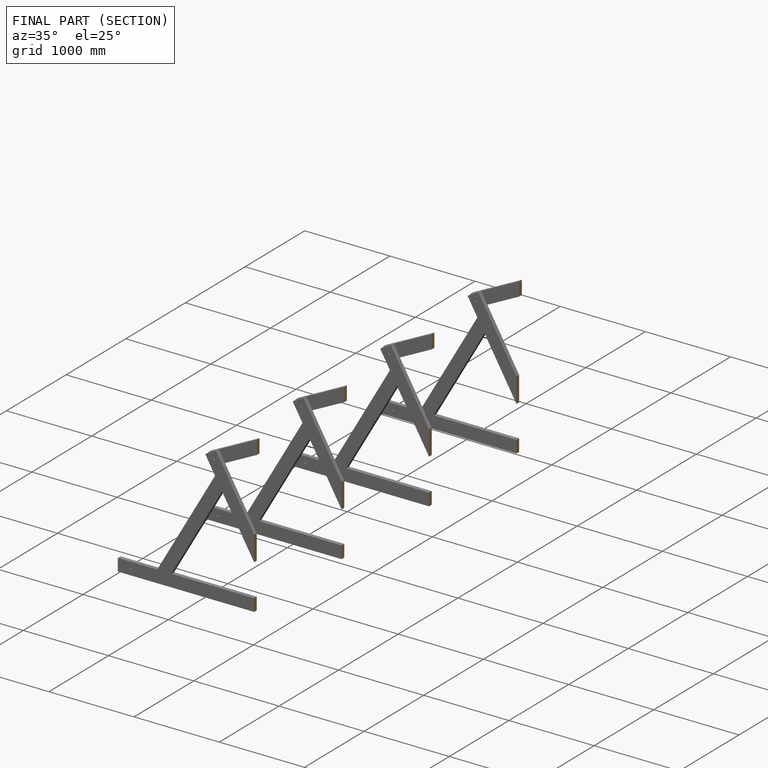
[diagram: finished part — half-section view (interior)]
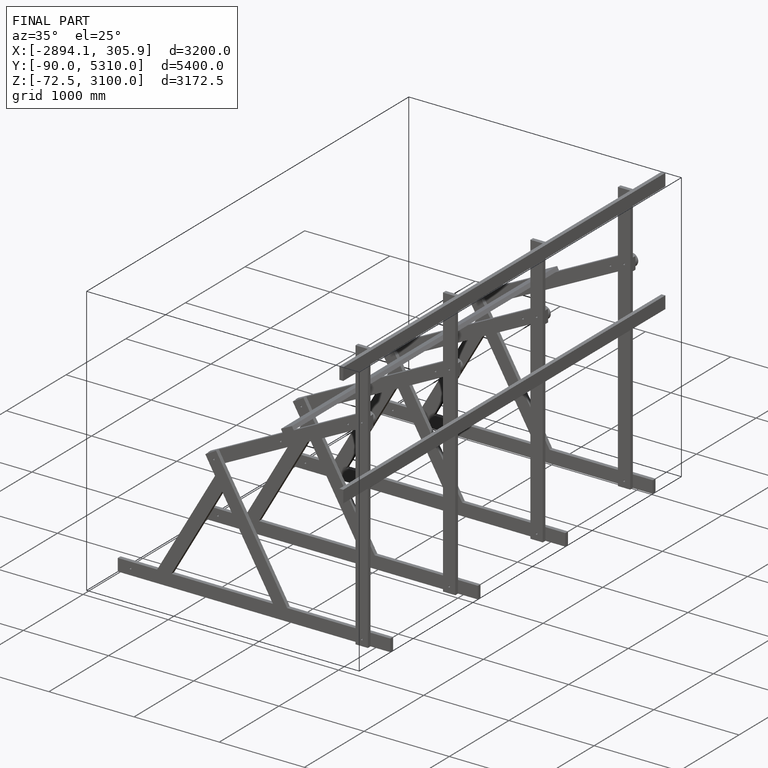
[diagram: finished part — iso view with bounding-box wireframe]
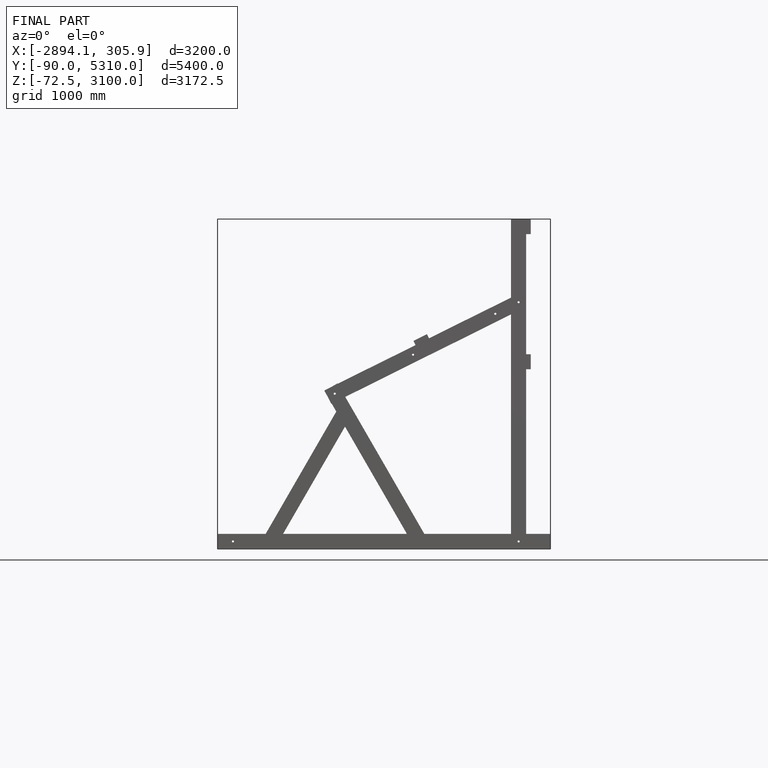
[diagram: finished part — front view with bounding-box wireframe]
